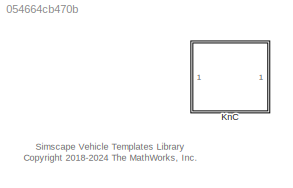
MODEL slx_054664cb470b
KIND library
CONFIG AbsTol = auto
CONFIG EnableMultiTasking = off
CONFIG FixedStep = auto
CONFIG MaxStep = auto
CONFIG MinStep = auto
CONFIG RelTol = 1e-3
CONFIG SampleTimeConstraint = Unconstrained
CONFIG SolverName = VariableStepAuto
CONFIG StartTime = 0.0
CONFIG StopTime = 10.0
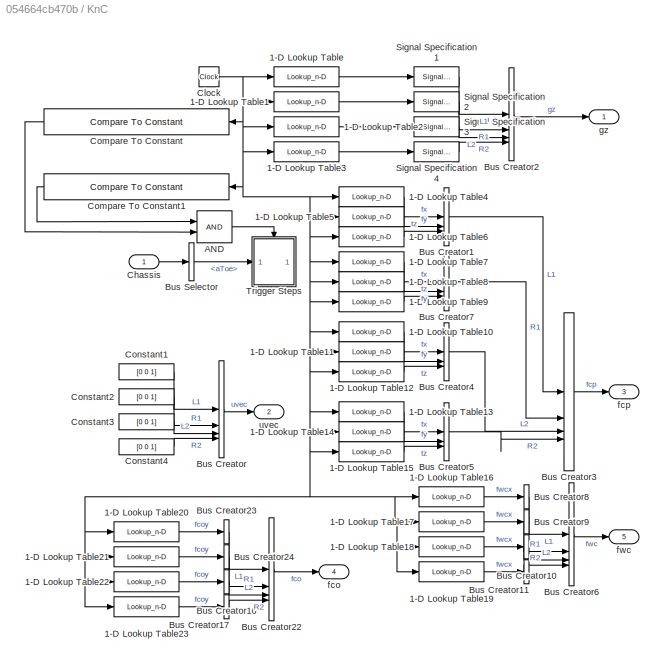
BLOCK [SubSystem] KnC
  VariantControl = KnC
BLOCK [Lookup_n-D] KnC/1-D Lookup Table
  BreakpointsForDimension1 = Maneuver.PostL1.t.Value
  InputPortMap = u0
  InternalRulePriority = Speed
  NumberOfTableDimensions = 1
  RndMeth = Simplest
  Table = Maneuver.PostL1.z.Value
BLOCK [Lookup_n-D] KnC/1-D Lookup Table1
  BreakpointsForDimension1 = Maneuver.PostR1.t.Value
  InputPortMap = u0
  InternalRulePriority = Speed
  NumberOfTableDimensions = 1
  RndMeth = Simplest
  Table = Maneuver.PostR1.z.Value
BLOCK [Lookup_n-D] KnC/1-D Lookup Table10
  BreakpointsForDimension1 = Maneuver.PostL2.t.Value
  InputPortMap = u0
  InternalRulePriority = Speed
  NumberOfTableDimensions = 1
  RndMeth = Simplest
  Table = Maneuver.PostL2.fx.Value
BLOCK [Lookup_n-D] KnC/1-D Lookup Table11
  BreakpointsForDimension1 = Maneuver.PostL2.t.Value
  InputPortMap = u0
  InternalRulePriority = Speed
  NumberOfTableDimensions = 1
  RndMeth = Simplest
  Table = Maneuver.PostL2.fy.Value
BLOCK [Lookup_n-D] KnC/1-D Lookup Table12
  BreakpointsForDimension1 = Maneuver.PostL2.t.Value
  InputPortMap = u0
  InternalRulePriority = Speed
  NumberOfTableDimensions = 1
  RndMeth = Simplest
  Table = Maneuver.PostL2.tz.Value
BLOCK [Lookup_n-D] KnC/1-D Lookup Table13
  BreakpointsForDimension1 = Maneuver.PostR2.t.Value
  InputPortMap = u0
  InternalRulePriority = Speed
  NumberOfTableDimensions = 1
  RndMeth = Simplest
  Table = Maneuver.PostR2.fx.Value
BLOCK [Lookup_n-D] KnC/1-D Lookup Table14
  BreakpointsForDimension1 = Maneuver.PostR2.t.Value
  InputPortMap = u0
  InternalRulePriority = Speed
  NumberOfTableDimensions = 1
  RndMeth = Simplest
  Table = Maneuver.PostR2.fy.Value
BLOCK [Lookup_n-D] KnC/1-D Lookup Table15
  BreakpointsForDimension1 = Maneuver.PostR2.t.Value
  InputPortMap = u0
  InternalRulePriority = Speed
  NumberOfTableDimensions = 1
  RndMeth = Simplest
  Table = Maneuver.PostR2.tz.Value
BLOCK [Lookup_n-D] KnC/1-D Lookup Table16
  BreakpointsForDimension1 = Maneuver.PostL1.t.Value
  InputPortMap = u0
  InternalRulePriority = Speed
  NumberOfTableDimensions = 1
  RndMeth = Simplest
  Table = Maneuver.PostL1.fwcx.Value
BLOCK [Lookup_n-D] KnC/1-D Lookup Table17
  BreakpointsForDimension1 = Maneuver.PostR1.t.Value
  InputPortMap = u0
  InternalRulePriority = Speed
  NumberOfTableDimensions = 1
  RndMeth = Simplest
  Table = Maneuver.PostR1.fwcx.Value
BLOCK [Lookup_n-D] KnC/1-D Lookup Table18
  BreakpointsForDimension1 = Maneuver.PostL2.t.Value
  InputPortMap = u0
  InternalRulePriority = Speed
  NumberOfTableDimensions = 1
  RndMeth = Simplest
  Table = Maneuver.PostL2.fwcx.Value
BLOCK [Lookup_n-D] KnC/1-D Lookup Table19
  BreakpointsForDimension1 = Maneuver.PostL2.t.Value
  InputPortMap = u0
  InternalRulePriority = Speed
  NumberOfTableDimensions = 1
  RndMeth = Simplest
  Table = Maneuver.PostL2.fwcx.Value
BLOCK [Lookup_n-D] KnC/1-D Lookup Table2
  BreakpointsForDimension1 = Maneuver.PostL2.t.Value
  InputPortMap = u0
  InternalRulePriority = Speed
  NumberOfTableDimensions = 1
  RndMeth = Simplest
  Table = Maneuver.PostL2.z.Value
BLOCK [Lookup_n-D] KnC/1-D Lookup Table20
  BreakpointsForDimension1 = Maneuver.PostL1.t.Value
  InputPortMap = u0
  InternalRulePriority = Speed
  NumberOfTableDimensions = 1
  RndMeth = Simplest
  Table = Maneuver.PostL1.fcoy.Value
BLOCK [Lookup_n-D] KnC/1-D Lookup Table21
  BreakpointsForDimension1 = Maneuver.PostR1.t.Value
  InputPortMap = u0
  InternalRulePriority = Speed
  NumberOfTableDimensions = 1
  RndMeth = Simplest
  Table = Maneuver.PostR1.fcoy.Value
BLOCK [Lookup_n-D] KnC/1-D Lookup Table22
  BreakpointsForDimension1 = Maneuver.PostL2.t.Value
  InputPortMap = u0
  InternalRulePriority = Speed
  NumberOfTableDimensions = 1
  RndMeth = Simplest
  Table = Maneuver.PostL2.fcoy.Value
BLOCK [Lookup_n-D] KnC/1-D Lookup Table23
  BreakpointsForDimension1 = Maneuver.PostR2.t.Value
  InputPortMap = u0
  InternalRulePriority = Speed
  NumberOfTableDimensions = 1
  RndMeth = Simplest
  Table = Maneuver.PostR2.fcoy.Value
BLOCK [Lookup_n-D] KnC/1-D Lookup Table3
  BreakpointsForDimension1 = Maneuver.PostR2.t.Value
  InputPortMap = u0
  InternalRulePriority = Speed
  NumberOfTableDimensions = 1
  RndMeth = Simplest
  Table = Maneuver.PostR2.z.Value
BLOCK [Lookup_n-D] KnC/1-D Lookup Table4
  BreakpointsForDimension1 = Maneuver.PostL1.t.Value
  InputPortMap = u0
  InternalRulePriority = Speed
  NumberOfTableDimensions = 1
  RndMeth = Simplest
  Table = Maneuver.PostL1.fx.Value
BLOCK [Lookup_n-D] KnC/1-D Lookup Table5
  BreakpointsForDimension1 = Maneuver.PostL1.t.Value
  InputPortMap = u0
  InternalRulePriority = Speed
  NumberOfTableDimensions = 1
  RndMeth = Simplest
  Table = Maneuver.PostL1.fy.Value
BLOCK [Lookup_n-D] KnC/1-D Lookup Table6
  BreakpointsForDimension1 = Maneuver.PostL1.t.Value
  InputPortMap = u0
  InternalRulePriority = Speed
  NumberOfTableDimensions = 1
  RndMeth = Simplest
  Table = Maneuver.PostL1.tz.Value
BLOCK [Lookup_n-D] KnC/1-D Lookup Table7
  BreakpointsForDimension1 = Maneuver.PostR1.t.Value
  InputPortMap = u0
  InternalRulePriority = Speed
  NumberOfTableDimensions = 1
  RndMeth = Simplest
  Table = Maneuver.PostR1.fx.Value
BLOCK [Lookup_n-D] KnC/1-D Lookup Table8
  BreakpointsForDimension1 = Maneuver.PostR1.t.Value
  InputPortMap = u0
  InternalRulePriority = Speed
  NumberOfTableDimensions = 1
  RndMeth = Simplest
  Table = Maneuver.PostR1.fy.Value
BLOCK [Lookup_n-D] KnC/1-D Lookup Table9
  BreakpointsForDimension1 = Maneuver.PostR1.t.Value
  InputPortMap = u0
  InternalRulePriority = Speed
  NumberOfTableDimensions = 1
  RndMeth = Simplest
  Table = Maneuver.PostR1.tz.Value
BLOCK [Logic] KnC/AND
  AllPortsSameDT = off
  IconShape = distinctive
  OutDataTypeStr = boolean
BLOCK [BusCreator] KnC/Bus Creator
  DisplayOption = bar
  InheritFromInputs = on
  Inputs = 4
BLOCK [BusCreator] KnC/Bus Creator1
  DisplayOption = bar
  InheritFromInputs = on
  Inputs = 3
BLOCK [BusCreator] KnC/Bus Creator10
  DisplayOption = bar
  InheritFromInputs = on
  Inputs = 1
BLOCK [BusCreator] KnC/Bus Creator11
  DisplayOption = bar
  InheritFromInputs = on
  Inputs = 1
BLOCK [BusCreator] KnC/Bus Creator16
  DisplayOption = bar
  InheritFromInputs = on
  Inputs = 1
BLOCK [BusCreator] KnC/Bus Creator17
  DisplayOption = bar
  InheritFromInputs = on
  Inputs = 1
BLOCK [BusCreator] KnC/Bus Creator2
  DisplayOption = bar
  InheritFromInputs = on
  Inputs = 4
BLOCK [BusCreator] KnC/Bus Creator22
  DisplayOption = bar
  InheritFromInputs = on
  Inputs = 4
BLOCK [BusCreator] KnC/Bus Creator23
  DisplayOption = bar
  InheritFromInputs = on
  Inputs = 1
BLOCK [BusCreator] KnC/Bus Creator24
  DisplayOption = bar
  InheritFromInputs = on
  Inputs = 1
BLOCK [BusCreator] KnC/Bus Creator3
  DisplayOption = bar
  InheritFromInputs = on
  Inputs = 4
BLOCK [BusCreator] KnC/Bus Creator4
  DisplayOption = bar
  InheritFromInputs = on
  Inputs = 3
BLOCK [BusCreator] KnC/Bus Creator5
  DisplayOption = bar
  InheritFromInputs = on
  Inputs = 3
BLOCK [BusCreator] KnC/Bus Creator6
  DisplayOption = bar
  InheritFromInputs = on
  Inputs = 4
BLOCK [BusCreator] KnC/Bus Creator7
  DisplayOption = bar
  InheritFromInputs = on
  Inputs = 3
BLOCK [BusCreator] KnC/Bus Creator8
  DisplayOption = bar
  InheritFromInputs = on
  Inputs = 1
BLOCK [BusCreator] KnC/Bus Creator9
  DisplayOption = bar
  InheritFromInputs = on
  Inputs = 1
BLOCK [BusSelector] KnC/Bus Selector
  OutputSignals = SuspA1.WhlL.aToe
BLOCK [Inport] KnC/Chassis
BLOCK [Clock] KnC/Clock
BLOCK [Reference] KnC/Compare To Constant  REF=simulink/Logic and Bit
Operations/Compare
To Constant
  SourceBlock = simulink/Logic and Bit\nOperations/Compare\nTo Constant
  SourceType = Compare To Constant
BLOCK [Reference] KnC/Compare To Constant1  REF=simulink/Logic and Bit
Operations/Compare
To Constant
  SourceBlock = simulink/Logic and Bit\nOperations/Compare\nTo Constant
  SourceType = Compare To Constant
BLOCK [Constant] KnC/Constant1
  Value = [0 0 1]
BLOCK [Constant] KnC/Constant2
  Value = [0 0 1]
BLOCK [Constant] KnC/Constant3
  Value = [0 0 1]
BLOCK [Constant] KnC/Constant4
  Value = [0 0 1]
BLOCK [SignalSpecification] KnC/Signal Specification1
  Unit = m
BLOCK [SignalSpecification] KnC/Signal Specification2
  Unit = m
BLOCK [SignalSpecification] KnC/Signal Specification3
  Unit = m
BLOCK [SignalSpecification] KnC/Signal Specification4
  Unit = m
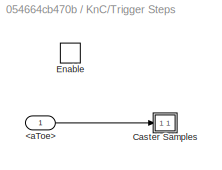
BLOCK [SubSystem] KnC/Trigger Steps
BLOCK [Inport] KnC/Trigger Steps/<aToe>
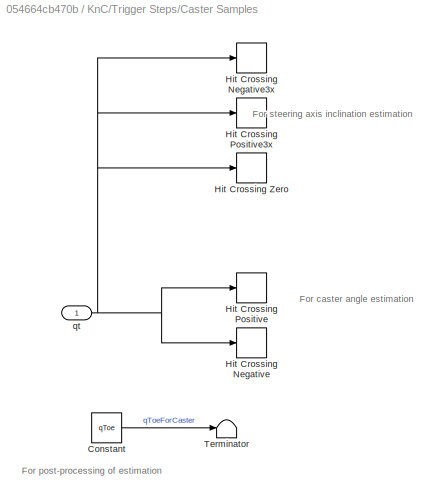
BLOCK [SubSystem] KnC/Trigger Steps/Caster Samples
  NameLocation = top
BLOCK [Constant] KnC/Trigger Steps/Caster Samples/Constant
  Value = qToe
BLOCK [HitCross] KnC/Trigger Steps/Caster Samples/Hit Crossing Negative
  HitCrossingDirection = falling
  HitCrossingOffset = -qToe
  ShowOutputPort = off
BLOCK [HitCross] KnC/Trigger Steps/Caster Samples/Hit Crossing Negative3x
  HitCrossingDirection = falling
  HitCrossingOffset = -qToe*3
  ShowOutputPort = off
BLOCK [HitCross] KnC/Trigger Steps/Caster Samples/Hit Crossing Positive
  HitCrossingDirection = rising
  HitCrossingOffset = qToe
  ShowOutputPort = off
BLOCK [HitCross] KnC/Trigger Steps/Caster Samples/Hit Crossing Positive3x
  HitCrossingDirection = rising
  HitCrossingOffset = qToe*3
  ShowOutputPort = off
BLOCK [HitCross] KnC/Trigger Steps/Caster Samples/Hit Crossing Zero
  HitCrossingDirection = rising
  ShowOutputPort = off
BLOCK [Terminator] KnC/Trigger Steps/Caster Samples/Terminator
BLOCK [Inport] KnC/Trigger Steps/Caster Samples/qt
BLOCK [EnablePort] KnC/Trigger Steps/Enable
BLOCK [Outport] KnC/fco
  Port = 4
  VectorParamsAs1DForOutWhenUnconnected = off
BLOCK [Outport] KnC/fcp
  Port = 3
  VectorParamsAs1DForOutWhenUnconnected = off
BLOCK [Outport] KnC/fwc
  Port = 5
  VectorParamsAs1DForOutWhenUnconnected = off
BLOCK [Outport] KnC/gz
  VectorParamsAs1DForOutWhenUnconnected = off
BLOCK [Outport] KnC/uvec
  Port = 2
  VectorParamsAs1DForOutWhenUnconnected = off
ANNOTATION (root): Simscape Vehicle Templates Library <copyright redacted>
ANNOTATION KnC/Trigger Steps/Caster Samples: For caster angle estimation
ANNOTATION KnC/Trigger Steps/Caster Samples: For post-processing of estimation
ANNOTATION KnC/Trigger Steps/Caster Samples: For steering axis inclination estimation
LINE KnC/1-D Lookup Table10:1 -> KnC/Bus Creator4:1
LINE KnC/1-D Lookup Table11:1 -> KnC/Bus Creator4:2
LINE KnC/1-D Lookup Table12:1 -> KnC/Bus Creator4:3
LINE KnC/1-D Lookup Table13:1 -> KnC/Bus Creator5:1
LINE KnC/1-D Lookup Table14:1 -> KnC/Bus Creator5:2
LINE KnC/1-D Lookup Table15:1 -> KnC/Bus Creator5:3
LINE KnC/1-D Lookup Table16:1 -> KnC/Bus Creator8:1
LINE KnC/1-D Lookup Table17:1 -> KnC/Bus Creator9:1
LINE KnC/1-D Lookup Table18:1 -> KnC/Bus Creator10:1
LINE KnC/1-D Lookup Table19:1 -> KnC/Bus Creator11:1
LINE KnC/1-D Lookup Table1:1 -> KnC/Signal Specification2:1
LINE KnC/1-D Lookup Table20:1 -> KnC/Bus Creator23:1
LINE KnC/1-D Lookup Table21:1 -> KnC/Bus Creator24:1
LINE KnC/1-D Lookup Table22:1 -> KnC/Bus Creator16:1
LINE KnC/1-D Lookup Table23:1 -> KnC/Bus Creator17:1
LINE KnC/1-D Lookup Table2:1 -> KnC/Signal Specification3:1
LINE KnC/1-D Lookup Table3:1 -> KnC/Signal Specification4:1
LINE KnC/1-D Lookup Table4:1 -> KnC/Bus Creator1:1
LINE KnC/1-D Lookup Table5:1 -> KnC/Bus Creator1:2
LINE KnC/1-D Lookup Table6:1 -> KnC/Bus Creator1:3
LINE KnC/1-D Lookup Table7:1 -> KnC/Bus Creator7:1
LINE KnC/1-D Lookup Table8:1 -> KnC/Bus Creator7:2
LINE KnC/1-D Lookup Table9:1 -> KnC/Bus Creator7:3
LINE KnC/1-D Lookup Table:1 -> KnC/Signal Specification1:1
LINE KnC/AND:1 -> KnC/Trigger Steps:enable
LINE KnC/Bus Creator10:1 -> KnC/Bus Creator6:3
LINE KnC/Bus Creator11:1 -> KnC/Bus Creator6:4
LINE KnC/Bus Creator16:1 -> KnC/Bus Creator22:3
LINE KnC/Bus Creator17:1 -> KnC/Bus Creator22:4
LINE KnC/Bus Creator1:1 -> KnC/Bus Creator3:1
LINE KnC/Bus Creator22:1 -> KnC/fco:1
LINE KnC/Bus Creator23:1 -> KnC/Bus Creator22:1
LINE KnC/Bus Creator24:1 -> KnC/Bus Creator22:2
LINE KnC/Bus Creator2:1 -> KnC/gz:1
LINE KnC/Bus Creator3:1 -> KnC/fcp:1
LINE KnC/Bus Creator4:1 -> KnC/Bus Creator3:3
LINE KnC/Bus Creator5:1 -> KnC/Bus Creator3:4
LINE KnC/Bus Creator6:1 -> KnC/fwc:1
LINE KnC/Bus Creator7:1 -> KnC/Bus Creator3:2
LINE KnC/Bus Creator8:1 -> KnC/Bus Creator6:1
LINE KnC/Bus Creator9:1 -> KnC/Bus Creator6:2
LINE KnC/Bus Creator:1 -> KnC/uvec:1
LINE KnC/Bus Selector:1 -> KnC/Trigger Steps:1
LINE KnC/Chassis:1 -> KnC/Bus Selector:1
NET KnC/Clock:1 -> KnC/1-D Lookup Table10:1, KnC/1-D Lookup Table11:1, KnC/1-D Lookup Table12:1, KnC/1-D Lookup Table13:1, KnC/1-D Lookup Table14:1, KnC/1-D Lookup Table15:1, KnC/1-D Lookup Table16:1, KnC/1-D Lookup Table17:1, KnC/1-D Lookup Table18:1, KnC/1-D Lookup Table19:1, KnC/1-D Lookup Table1:1, KnC/1-D Lookup Table20:1, KnC/1-D Lookup Table21:1, KnC/1-D Lookup Table22:1, KnC/1-D Lookup Table23:1, KnC/1-D Lookup Table2:1, KnC/1-D Lookup Table3:1, KnC/1-D Lookup Table4:1, KnC/1-D Lookup Table5:1, KnC/1-D Lookup Table6:1, KnC/1-D Lookup Table7:1, KnC/1-D Lookup Table8:1, KnC/1-D Lookup Table9:1, KnC/1-D Lookup Table:1, KnC/Compare To Constant1:1, KnC/Compare To Constant:1
LINE KnC/Compare To Constant1:1 -> KnC/AND:1
LINE KnC/Compare To Constant:1 -> KnC/AND:2
LINE KnC/Constant1:1 -> KnC/Bus Creator:1
LINE KnC/Constant2:1 -> KnC/Bus Creator:2
LINE KnC/Constant3:1 -> KnC/Bus Creator:3
LINE KnC/Constant4:1 -> KnC/Bus Creator:4
LINE KnC/Signal Specification1:1 -> KnC/Bus Creator2:1
LINE KnC/Signal Specification2:1 -> KnC/Bus Creator2:2
LINE KnC/Signal Specification3:1 -> KnC/Bus Creator2:3
LINE KnC/Signal Specification4:1 -> KnC/Bus Creator2:4
LINE KnC/Trigger Steps/<aToe>:1 -> KnC/Trigger Steps/Caster Samples:1
LINE KnC/Trigger Steps/Caster Samples/Constant:1 -> KnC/Trigger Steps/Caster Samples/Terminator:1
NET KnC/Trigger Steps/Caster Samples/qt:1 -> KnC/Trigger Steps/Caster Samples/Hit Crossing Negative3x:1, KnC/Trigger Steps/Caster Samples/Hit Crossing Negative:1, KnC/Trigger Steps/Caster Samples/Hit Crossing Positive3x:1, KnC/Trigger Steps/Caster Samples/Hit Crossing Positive:1, KnC/Trigger Steps/Caster Samples/Hit Crossing Zero:1
note: NET lines group one-source signal fan-out (src -> all destinations, sorted); 1:1 wires keep LINE
